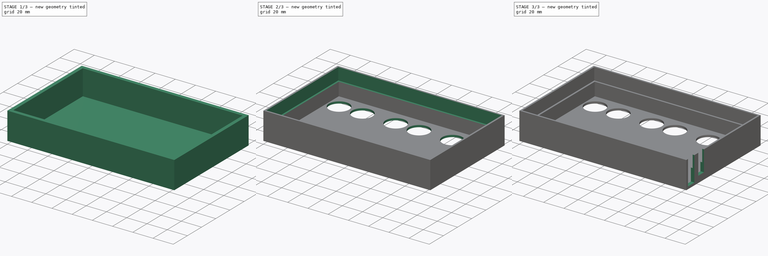
[diagram: build sequence overview — one tinted view per stage of 3, left to right]
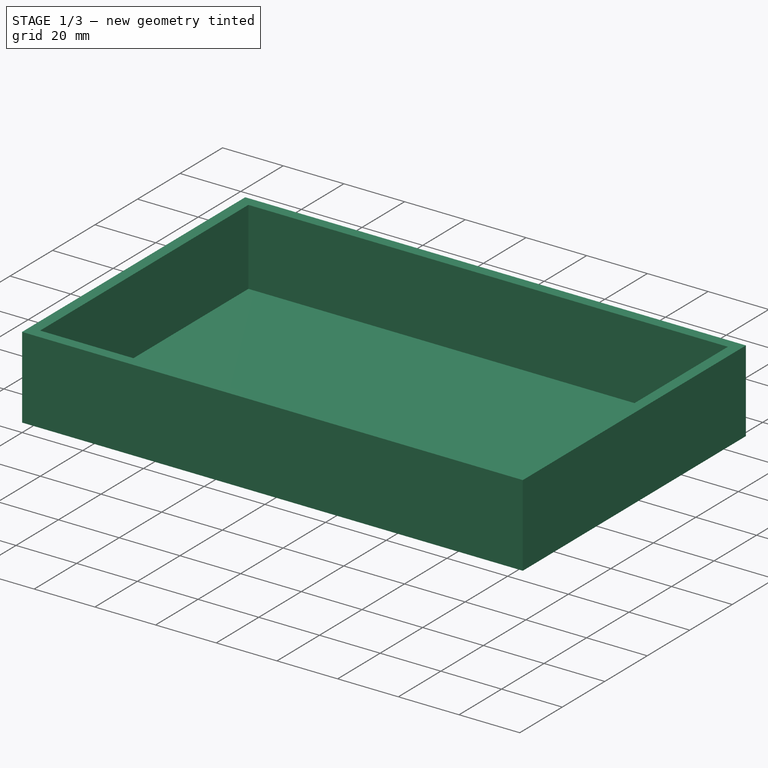
[diagram: stage 1 of 3 — iso view after this stage's code; geometry added in this stage tinted green]
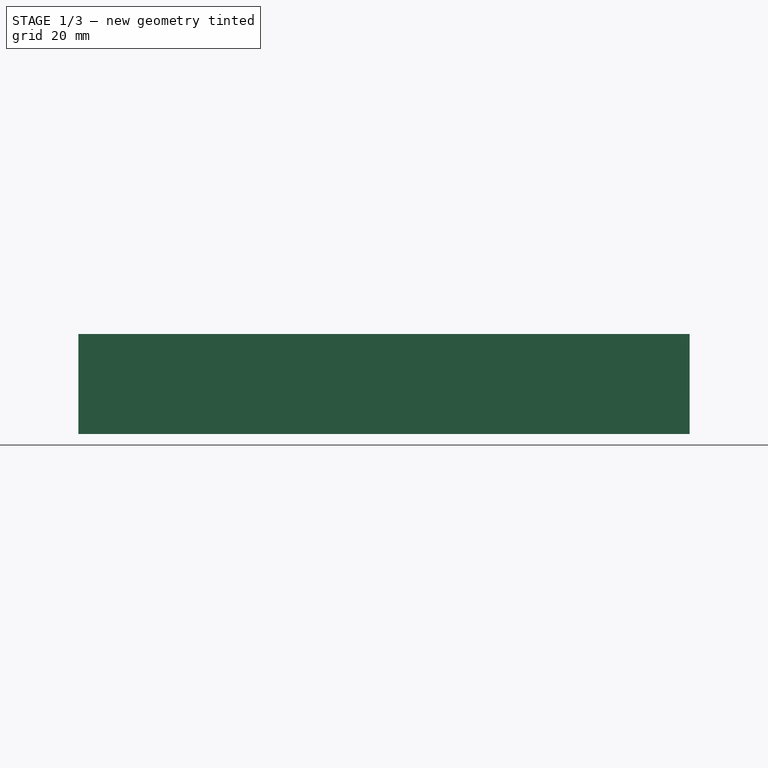
[diagram: stage 1 of 3 — front view after this stage's code; geometry added in this stage tinted green]
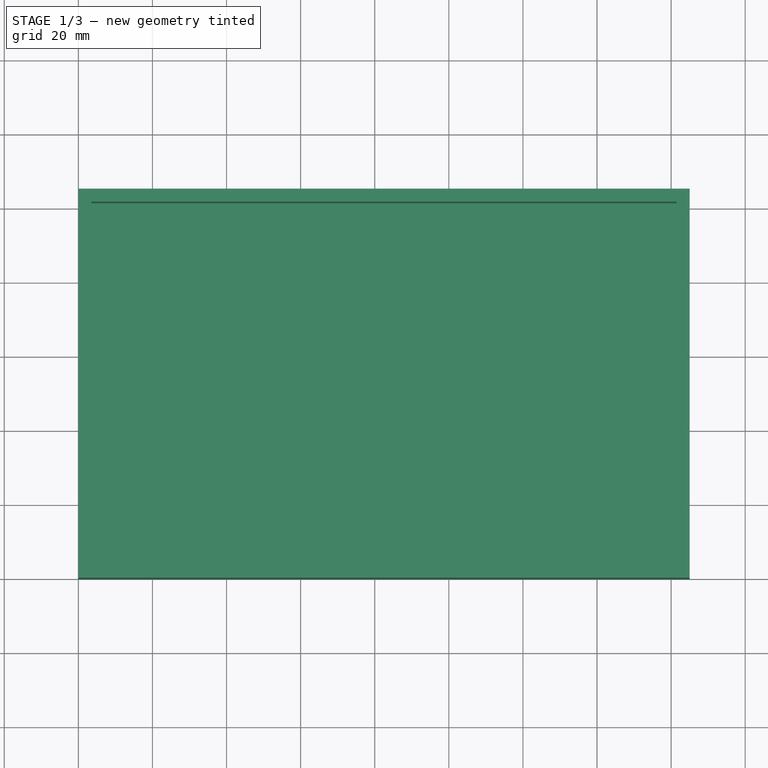
[diagram: stage 1 of 3 — top view after this stage's code; geometry added in this stage tinted green]
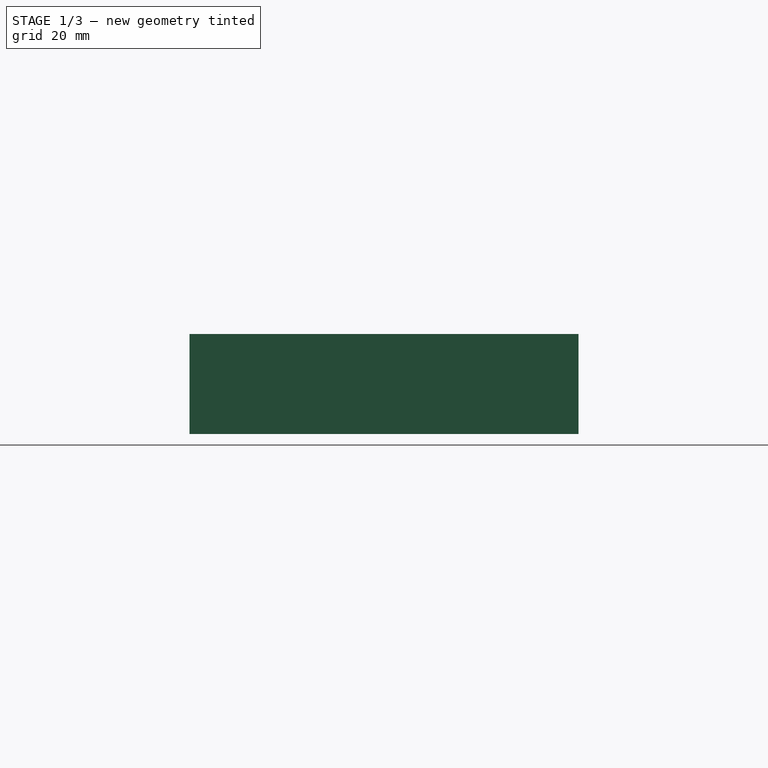
[diagram: stage 1 of 3 — right view after this stage's code; geometry added in this stage tinted green]
FCSTD DOCUMENT  (FreeCAD 0.14R3702 (Git))
Label: Case Top
License: CC-BY 3.0
LicenseURL: http://creativecommons.org/licenses/by/3.0/
objects: Sketcher::SketchObject×6, PartDesign::Pocket×5, PartDesign::Pad×1
note: 18 computed .brp shape members not serialized (recipe doc carries the construction recipe); baked Part::Feature solids carry a one-line shape summary decoded from their .brp

FEATURE [Sketcher::SketchObject] Sketch
  sketch-geometry (4):
    g0: LineSegment StartX=0 StartY=0 StartZ=0 EndX=165 EndY=0 EndZ=0
    g1: LineSegment StartX=165 StartY=0 StartZ=0 EndX=165 EndY=105 EndZ=0
    g2: LineSegment StartX=165 StartY=105 StartZ=0 EndX=0 EndY=105 EndZ=0
    g3: LineSegment StartX=0 StartY=105 StartZ=0 EndX=0 EndY=0 EndZ=0
  constraints (12):
    c: Coincident(g0,g1)
    c: Coincident(g1,g2)
    c: Coincident(g2,g3)
    c: Coincident(g3,g0)
    c: Horizontal(g0)
    c: Horizontal(g2)
    c: Vertical(g1)
    c: Vertical(g3)
    c: Distance(g1) = 105
    c: Distance(g0) = 165
    c: DistanceX(g0) = 0
    c: DistanceY(g0) = 0
FEATURE [PartDesign::Pad] Pad
  Length = 27
  Length2 = 100
  Sketch = -> Sketch
  Type = 0
FEATURE [Sketcher::SketchObject] Sketch001
  Placement = pos=(0,0,27) rot=(0,0,1;0rad)
  Support = -> Pad [Face6]
  sketch-geometry (4):
    g0: LineSegment StartX=3.5 StartY=3.5 StartZ=0 EndX=161.5 EndY=3.5 EndZ=0
    g1: LineSegment StartX=161.5 StartY=3.5 StartZ=0 EndX=161.5 EndY=101.5 EndZ=0
    g2: LineSegment StartX=161.5 StartY=101.5 StartZ=0 EndX=3.5 EndY=101.5 EndZ=0
    g3: LineSegment StartX=3.5 StartY=101.5 StartZ=0 EndX=3.5 EndY=3.5 EndZ=0
  constraints (12):
    c: Coincident(g0,g1)
    c: Coincident(g1,g2)
    c: Coincident(g2,g3)
    c: Coincident(g3,g0)
    c: Horizontal(g0)
    c: Horizontal(g2)
    c: Vertical(g1)
    c: Vertical(g3)
    c: Distance(g0) = 158
    c: Distance(g3) = 98
    c: DistanceX(g0) = 3.5
    c: DistanceY(g0) = 3.5
FEATURE [PartDesign::Pocket] Pocket
  Length = 25
  Sketch = -> Sketch001
  Type = 0
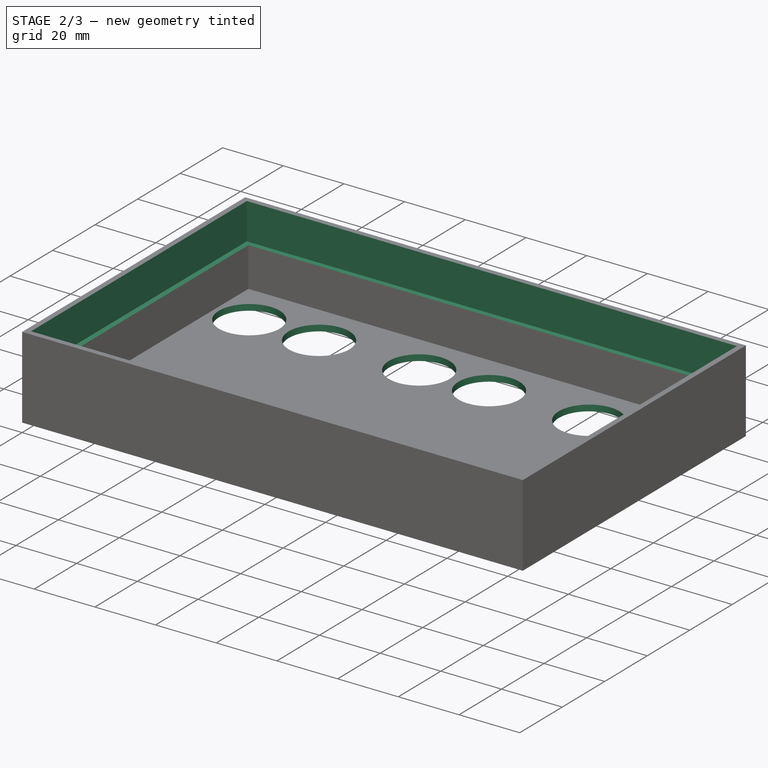
[diagram: stage 2 of 3 — iso view after this stage's code; geometry added in this stage tinted green]
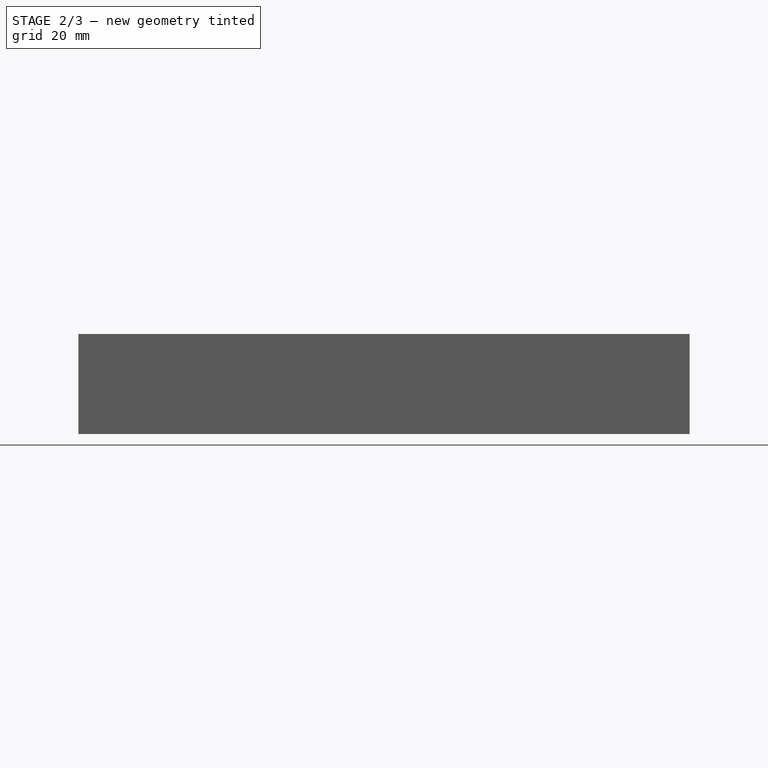
[diagram: stage 2 of 3 — front view after this stage's code; geometry added in this stage tinted green]
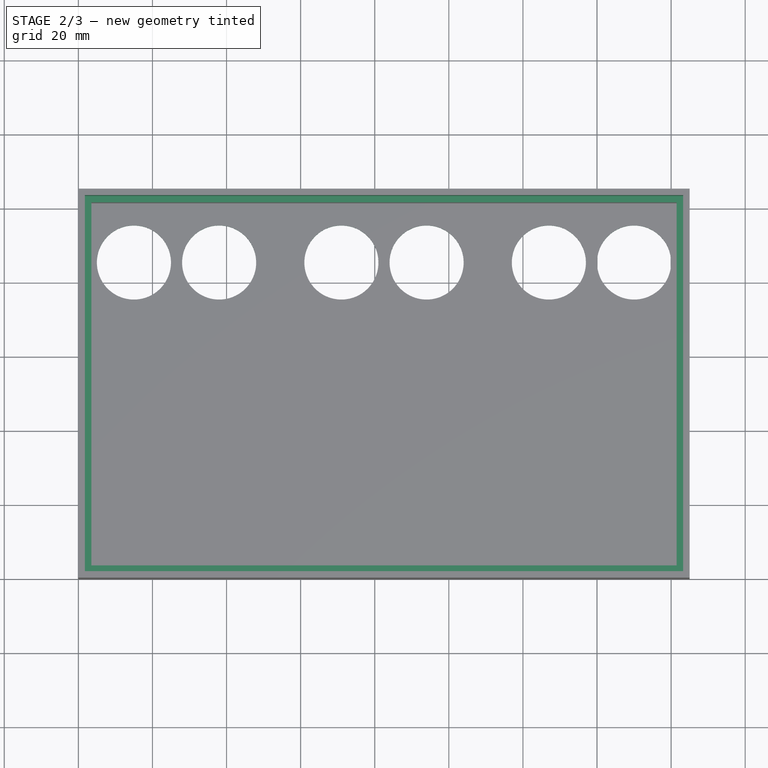
[diagram: stage 2 of 3 — top view after this stage's code; geometry added in this stage tinted green]
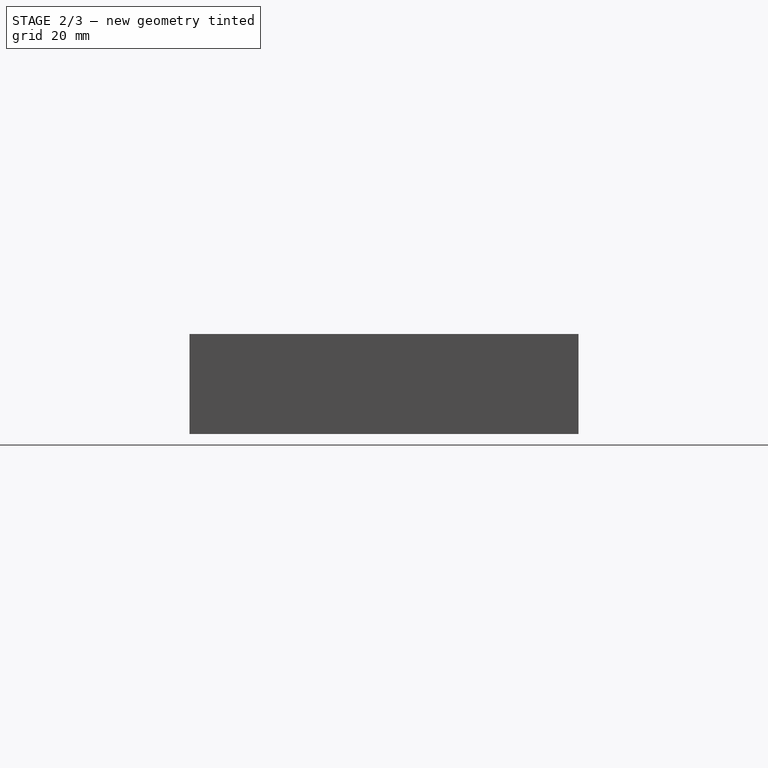
[diagram: stage 2 of 3 — right view after this stage's code; geometry added in this stage tinted green]
FEATURE [Sketcher::SketchObject] Sketch002
  Placement = pos=(0,0,27) rot=(0,0,1;0rad)
  Support = -> Pocket [Face5]
  sketch-geometry (4):
    g0: LineSegment StartX=1.75 StartY=1.75 StartZ=0 EndX=163.25 EndY=1.75 EndZ=0
    g1: LineSegment StartX=163.25 StartY=1.75 StartZ=0 EndX=163.25 EndY=103.25 EndZ=0
    g2: LineSegment StartX=163.25 StartY=103.25 StartZ=0 EndX=1.75 EndY=103.25 EndZ=0
    g3: LineSegment StartX=1.75 StartY=103.25 StartZ=0 EndX=1.75 EndY=1.75 EndZ=0
  constraints (12):
    c: Coincident(g0,g1)
    c: Coincident(g1,g2)
    c: Coincident(g2,g3)
    c: Coincident(g3,g0)
    c: Horizontal(g0)
    c: Horizontal(g2)
    c: Vertical(g1)
    c: Vertical(g3)
    c: DistanceX(g0) = 1.75
    c: DistanceY(g0) = 1.75
    c: Distance(g0) = 161.5
    c: Distance(g3) = 101.5
FEATURE [PartDesign::Pocket] Pocket001
  Length = 12
  Sketch = -> Sketch002
  Type = 0
FEATURE [Sketcher::SketchObject] Sketch003
  Placement = pos=(0,0,0) rot=(1,0,0;3.14159rad)
  Support = -> Pocket001 [Face4]
  sketch-geometry (11):
    g0: LineSegment [constr] StartX=2.5 StartY=-2.5 StartZ=0 EndX=162.5 EndY=-2.5 EndZ=0
    g1: LineSegment [constr] StartX=162.5 StartY=-2.5 StartZ=0 EndX=162.5 EndY=-102.5 EndZ=0
    g2: LineSegment [constr] StartX=162.5 StartY=-102.5 StartZ=0 EndX=2.5 EndY=-102.5 EndZ=0
    g3: LineSegment [constr] StartX=2.5 StartY=-102.5 StartZ=0 EndX=2.5 EndY=-2.5 EndZ=0
    g4: Circle CenterX=15 CenterY=-85.5 CenterZ=0 NormalX=0 NormalY=0 NormalZ=1 Radius=10
    g5: Circle CenterX=38 CenterY=-85.5 CenterZ=0 NormalX=0 NormalY=0 NormalZ=1 Radius=10
    g6: LineSegment [constr] StartX=15 StartY=-85.5 StartZ=0 EndX=162.5 EndY=-85.5 EndZ=0
    g7: Circle CenterX=71 CenterY=-85.5 CenterZ=0 NormalX=0 NormalY=0 NormalZ=1 Radius=10
    g8: Circle CenterX=94 CenterY=-85.5 CenterZ=0 NormalX=0 NormalY=0 NormalZ=1 Radius=10
    g9: Circle CenterX=127 CenterY=-85.5 CenterZ=0 NormalX=0 NormalY=0 NormalZ=1 Radius=10
    g10: Circle CenterX=150 CenterY=-85.5 CenterZ=0 NormalX=0 NormalY=0 NormalZ=1 Radius=10
  constraints (33):
    c: Coincident(g0,g1)
    c: Coincident(g1,g2)
    c: Coincident(g2,g3)
    c: Coincident(g3,g0)
    c: Horizontal(g0)
    c: Horizontal(g2)
    c: Vertical(g1)
    c: Vertical(g3)
    c: DistanceX(g0) = 2.5
    c: DistanceY(g0) = -2.5
    c: Distance(g0) = 160
    c: Distance(g3) = 100
    c: Distance(g4,g2) = 17
    c: Radius(g4) = 10
    c: Equal(g5,g4)
    c: Coincident(g6,g4)
    c: Horizontal(g6)
    c: PointOnObject(g5,g6)
    c: Distance(g5,g4) = 23
    c: PointOnObject(g7,g6)
    c: PointOnObject(g8,g6)
    c: PointOnObject(g9,g6)
    c: PointOnObject(g10,g6)
    c: Equal(g7,g5)
    c: Equal(g8,g7)
    c: Equal(g9,g8)
    c: Equal(g10,g9)
    c: Distance(g5,g7) = 33
    c: Distance(g7,g8) = 23
    c: Distance(g9,g10) = 23
    c: Distance(g8,g9) = 33
    c: Distance(g4,g3) = 12.5
    c: PointOnObject(g6,g1)
FEATURE [PartDesign::Pocket] Pocket002
  Length = 5
  Sketch = -> Sketch003
  Type = 1
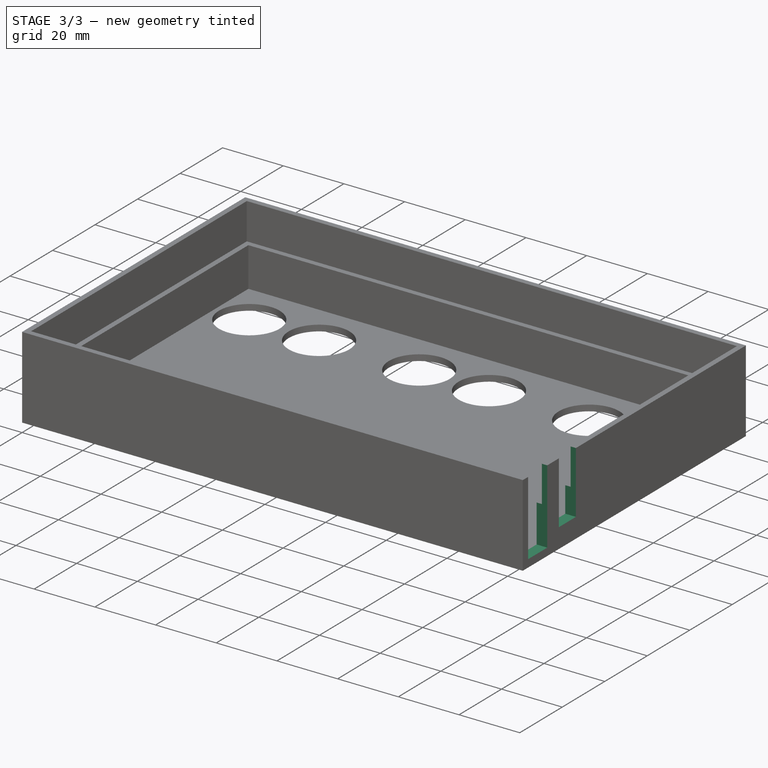
[diagram: stage 3 of 3 — iso view after this stage's code; geometry added in this stage tinted green]
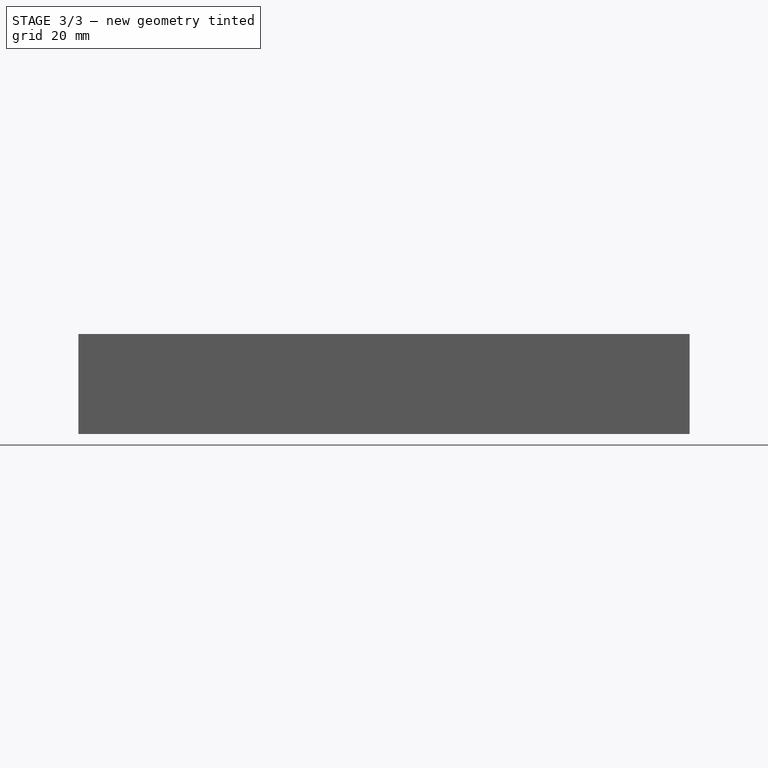
[diagram: stage 3 of 3 — front view after this stage's code; geometry added in this stage tinted green]
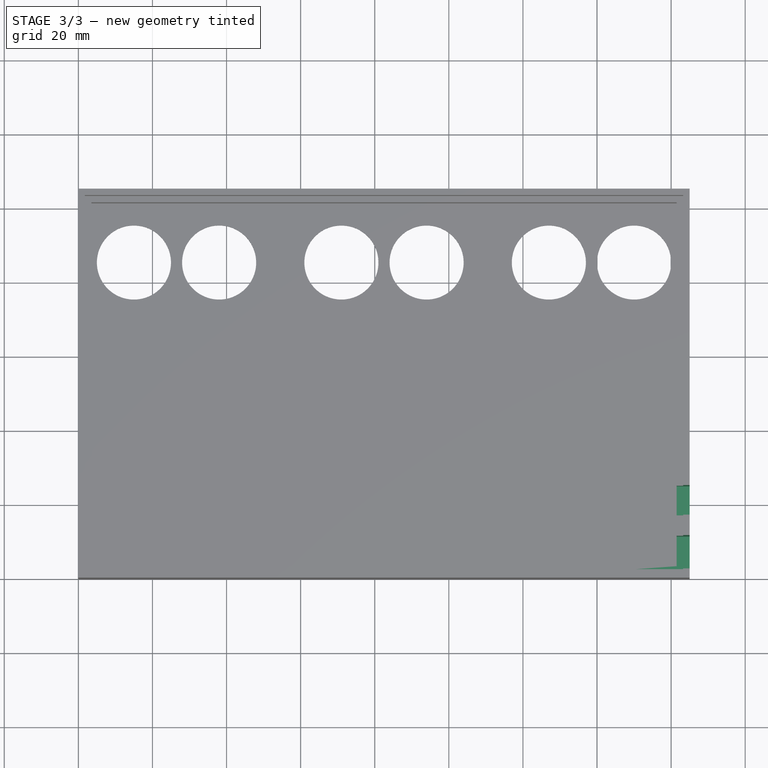
[diagram: stage 3 of 3 — top view after this stage's code; geometry added in this stage tinted green]
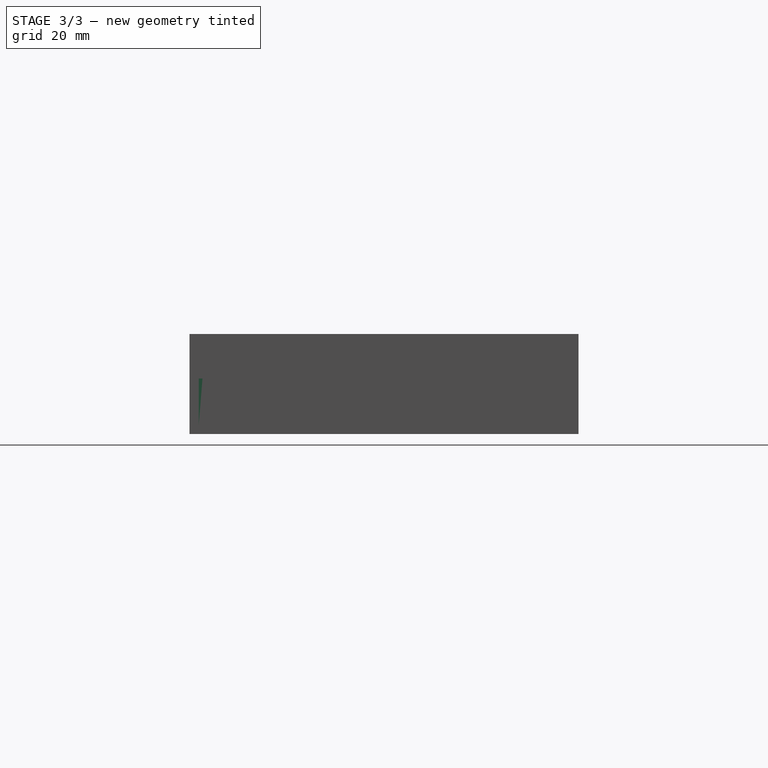
[diagram: stage 3 of 3 — right view after this stage's code; geometry added in this stage tinted green]
FEATURE [Sketcher::SketchObject] Sketch004
  Placement = pos=(0,0,27) rot=(0,0,1;0rad)
  Support = -> Pocket002 [Face5]
  sketch-geometry (8):
    g0: LineSegment [constr] StartX=2.5 StartY=2.5 StartZ=0 EndX=162.5 EndY=2.5 EndZ=0
    g1: LineSegment [constr] StartX=162.5 StartY=2.5 StartZ=0 EndX=162.5 EndY=102.5 EndZ=0
    g2: LineSegment [constr] StartX=162.5 StartY=102.5 StartZ=0 EndX=2.5 EndY=102.5 EndZ=0
    g3: LineSegment [constr] StartX=2.5 StartY=102.5 StartZ=0 EndX=2.5 EndY=2.5 EndZ=0
    g4: LineSegment StartX=147.5 StartY=11.5 StartZ=0 EndX=165 EndY=11.5 EndZ=0
    g5: LineSegment StartX=165 StartY=11.5 StartZ=0 EndX=165 EndY=2.5 EndZ=0
    g6: LineSegment StartX=165 StartY=2.5 StartZ=0 EndX=147.5 EndY=2.5 EndZ=0
    g7: LineSegment StartX=147.5 StartY=2.5 StartZ=0 EndX=147.5 EndY=11.5 EndZ=0
  constraints (24):
    c: Coincident(g0,g1)
    c: Coincident(g1,g2)
    c: Coincident(g2,g3)
    c: Coincident(g3,g0)
    c: Horizontal(g0)
    c: Horizontal(g2)
    c: Vertical(g1)
    c: Vertical(g3)
    c: DistanceX(g0) = 2.5
    c: DistanceY(g0) = 2.5
    c: Distance(g0) = 160
    c: Distance(g3) = 100
    c: Coincident(g4,g5)
    c: Coincident(g5,g6)
    c: Coincident(g6,g7)
    c: Coincident(g7,g4)
    c: Horizontal(g4)
    c: Horizontal(g6)
    c: Vertical(g5)
    c: Vertical(g7)
    c: Distance(g7) = 9
    c: Distance(g4) = 17.5
    c: DistanceY(g5,g0) = 0
    c: DistanceX(g5,g0) = -2.5
FEATURE [PartDesign::Pocket] Pocket003
  Length = 24.5
  Sketch = -> Sketch004
  Type = 0
FEATURE [Sketcher::SketchObject] Sketch005
  Placement = pos=(0,0,27) rot=(0,0,1;0rad)
  Support = -> Pocket003 [Face5]
  sketch-geometry (8):
    g0: LineSegment [constr] StartX=2.5 StartY=2.5 StartZ=0 EndX=162.5 EndY=2.5 EndZ=0
    g1: LineSegment [constr] StartX=162.5 StartY=2.5 StartZ=0 EndX=162.5 EndY=102.5 EndZ=0
    g2: LineSegment [constr] StartX=162.5 StartY=102.5 StartZ=0 EndX=2.5 EndY=102.5 EndZ=0
    g3: LineSegment [constr] StartX=2.5 StartY=102.5 StartZ=0 EndX=2.5 EndY=2.5 EndZ=0
    g4: LineSegment StartX=165 StartY=25 StartZ=0 EndX=150 EndY=25 EndZ=0
    g5: LineSegment StartX=150 StartY=25 StartZ=0 EndX=150 EndY=17 EndZ=0
    g6: LineSegment StartX=150 StartY=17 StartZ=0 EndX=165 EndY=17 EndZ=0
    g7: LineSegment StartX=165 StartY=17 StartZ=0 EndX=165 EndY=25 EndZ=0
  constraints (24):
    c: Coincident(g0,g1)
    c: Coincident(g1,g2)
    c: Coincident(g2,g3)
    c: Coincident(g3,g0)
    c: Horizontal(g0)
    c: Horizontal(g2)
    c: Vertical(g1)
    c: Vertical(g3)
    c: DistanceX(g0) = 2.5
    c: DistanceY(g0) = 2.5
    c: Distance(g3) = 100
    c: Distance(g0) = 160
    c: Coincident(g4,g5)
    c: Coincident(g5,g6)
    c: Coincident(g6,g7)
    c: Coincident(g7,g4)
    c: Horizontal(g4)
    c: Horizontal(g6)
    c: Vertical(g5)
    c: Vertical(g7)
    c: Distance(g6,g1) = 2.5
    c: Distance(g6) = 15
    c: Distance(g7) = 8
    c: Distance(g0,g6) = 14.5
FEATURE [PartDesign::Pocket] Pocket004
  Length = 20.5
  Sketch = -> Sketch005
  Type = 0
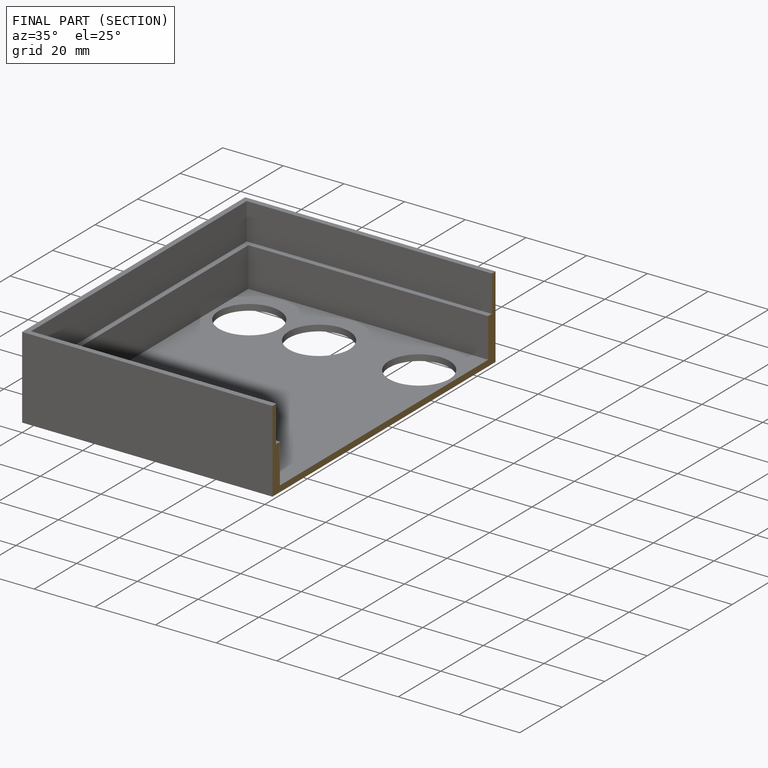
[diagram: finished part — half-section view (interior)]
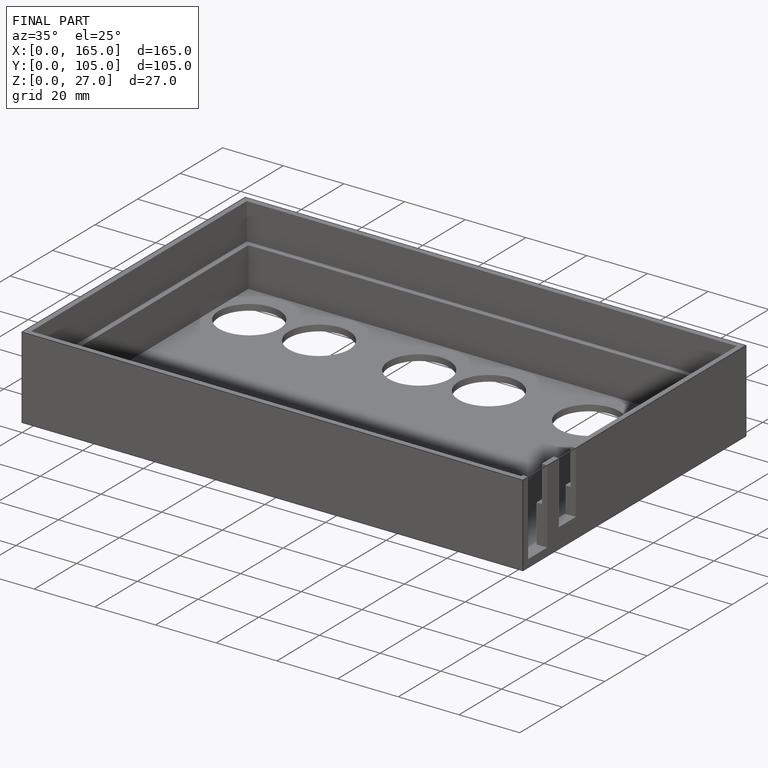
[diagram: finished part — iso view with bounding-box wireframe]
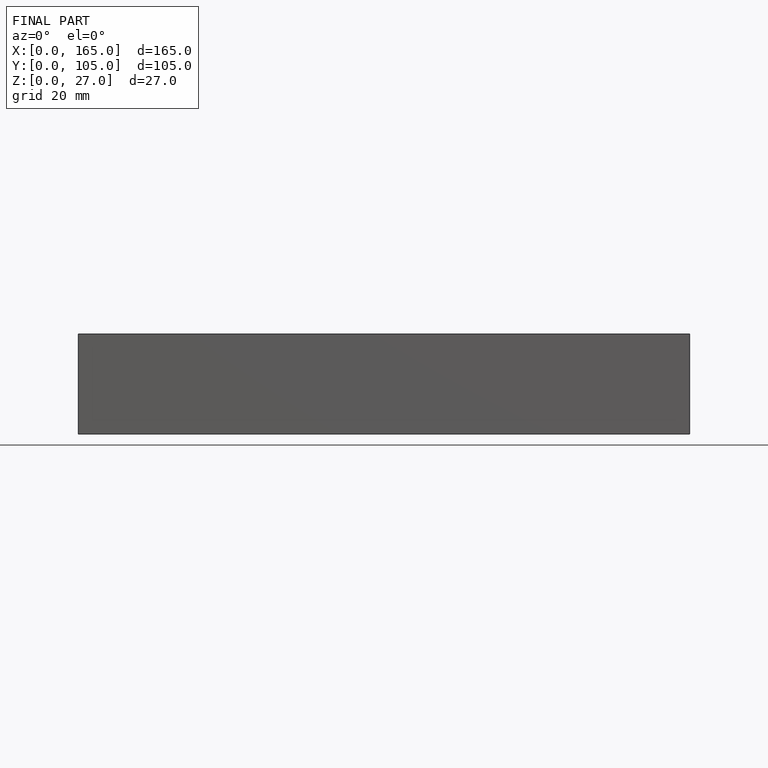
[diagram: finished part — front view with bounding-box wireframe]
